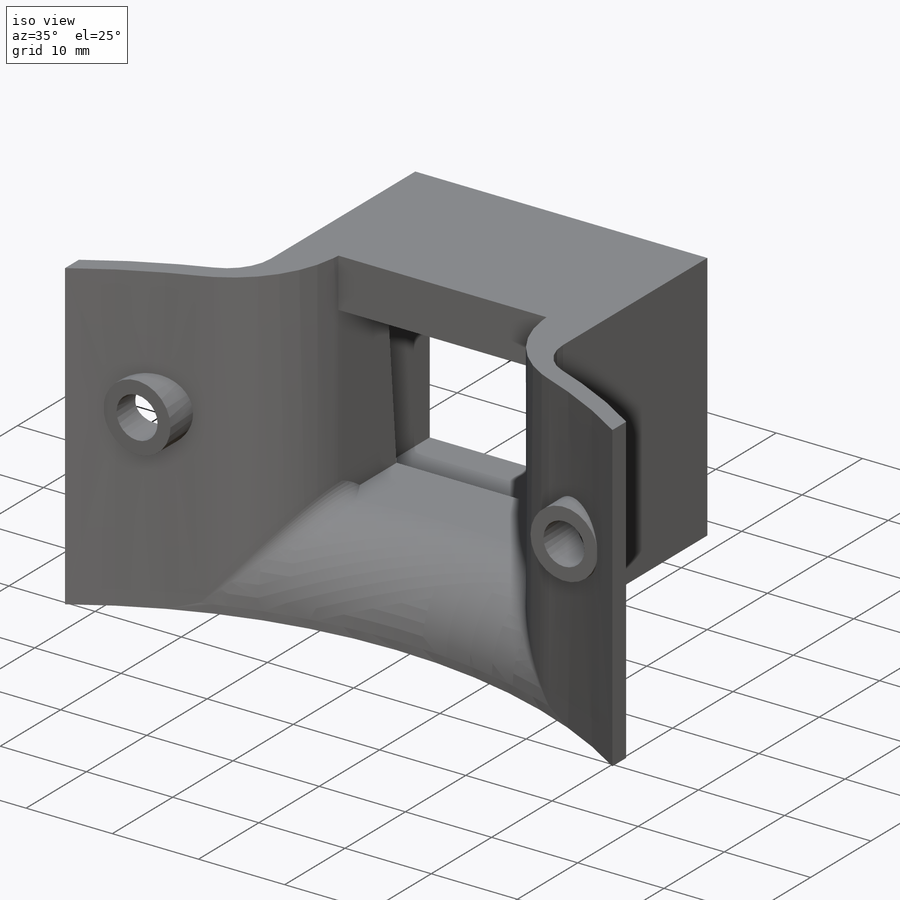
[diagram: iso view]
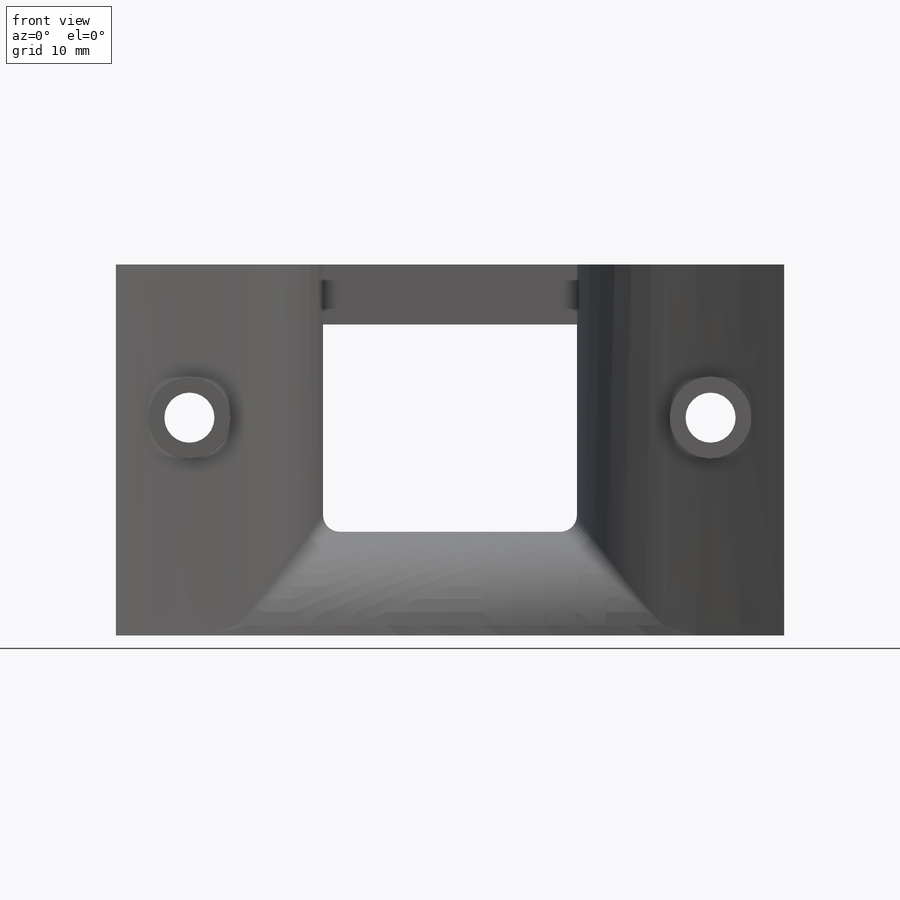
[diagram: front view]
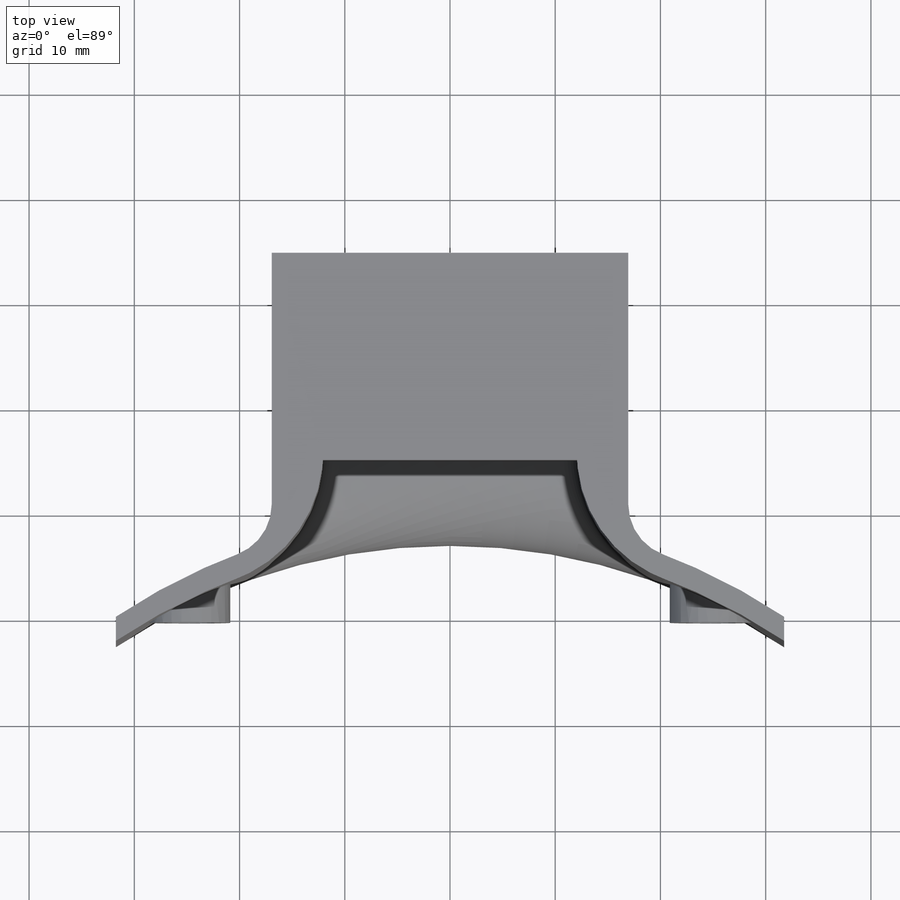
[diagram: top view]
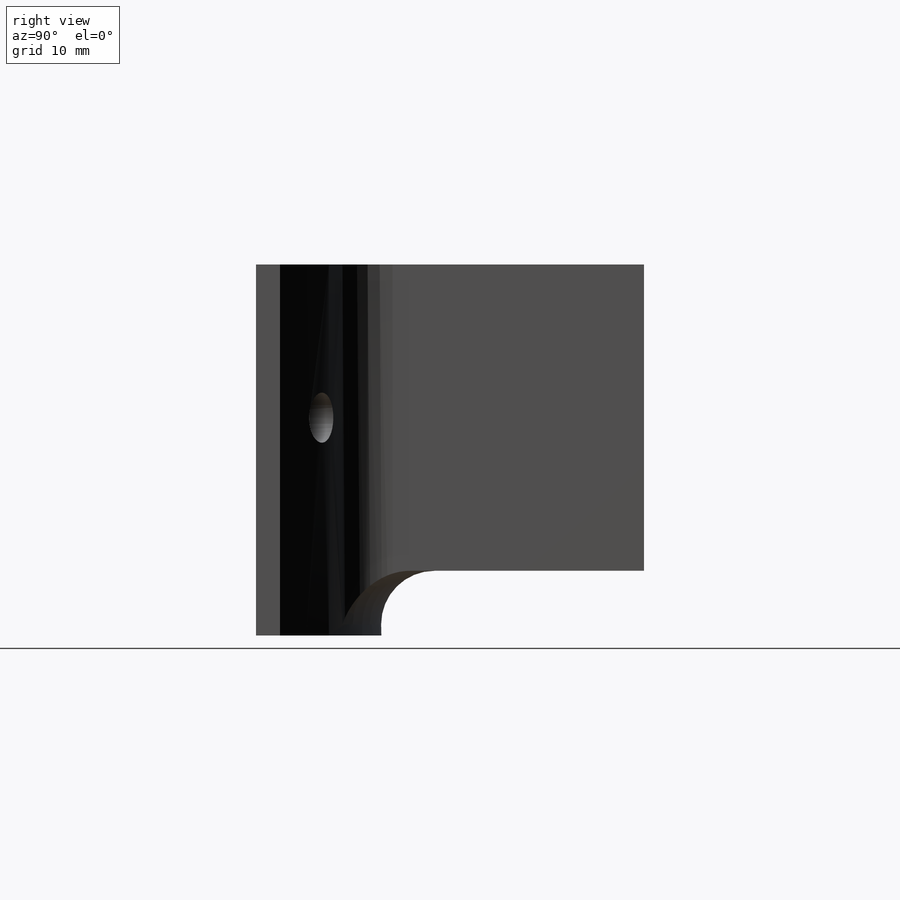
[diagram: right view]
SOLIDWORKS PART (.sldprt)
format: sldprt  version: not decoded by parser v0  size: 454,144 bytes
history: native  units: mm
features: sketch x14, plane x6, cut_extrude x6, extrude x5, fillet x4, material x1, mirror x1 + 1 further entry (+12 scaffold rows collapsed)
feature tree (50):
  scaffold x12  (default folders/planes/origin — collapsed)
  material  "Material <not specified>"
  "Design Table"
  sketch  "Sketch1"  dims[c1.D1=57.15mm c1.D2=63.5mm c1.D3=~8.660286mm c1.D4=~34.121436mm c2.D3=49.53mm]
  extrude  "Boss-Extrude1"  Depth=35.56mm
  sketch  "3DSketch1"  dims[ScrewSpacing=49.53mm]
  plane  "Plane1"
  sketch  "Sketch6"  dims[D2=7.7724mm D1=20.701mm]
  extrude  "Boss-Extrude4"  Depth=2.032mm
  sketch  "Sketch4"  dims[D2=4.7625mm D1=20.701mm]
  cut_extrude  "Cut-Extrude1"  [1 undecoded]
  mirror  "Mirror1"
  sketch  "3DSketch3"
  plane  "Plane3"
  plane  "Plane4"  Offset=34.544mm
  sketch  "Sketch8"  dims[D1=33.8836mm D2=29.1084mm D3=2.286mm]
  extrude  "Boss-Extrude3"  [1 undecoded]
  sketch  "Sketch10"  dims[D1=1.6764mm D2=1.6764mm]
  cut_extrude  "Cut-Extrude3"  Depth=17.78mm
  sketch  "Sketch11"  dims[D1=22.479mm D2=24.13mm D3=~0.396875mm]
  cut_extrude  "Cut-Extrude4"  [1 undecoded]
  plane  "Plane5"  Offset=7.62mm
  sketch  "Sketch12"
  cut_extrude  "Cut-Extrude5"  Depth=17.78mm
  fillet  "Fillet6"  Radius=5.08mm
  fillet  "Fillet5"  Radius=12.7mm
  fillet  "Fillet7"  Radius=8.89mm
  plane  "Plane6"  Offset=12.065mm
  sketch  "Sketch13"
  cut_extrude  "Cut-Extrude6"  [1 undecoded]
  sketch  "Sketch14"
  cut_extrude  "Cut-Extrude7"  [1 undecoded]
  sketch  "Sketch15"
  extrude  "Boss-Extrude5"  Depth=2.38125mm
  fillet  "Fillet8"  Radius=1.5875mm
  sketch  "Sketch16"  dims[D1=~1.984375mm]
  plane  "Plane7"
  sketch  "Sketch18"
  extrude  "Boss-Extrude6"  [1 undecoded]
decode coverage: 17 of 30 modeling features carry decoded parameters; 1 rows unclassified (native names shown)
note: ~ marks probable driven/reference dimensions
note: 6 parameter values undecoded
summary: no parameter record found for 6 features
note: suppression state not decoded; provenance and decode notes live in map.json
